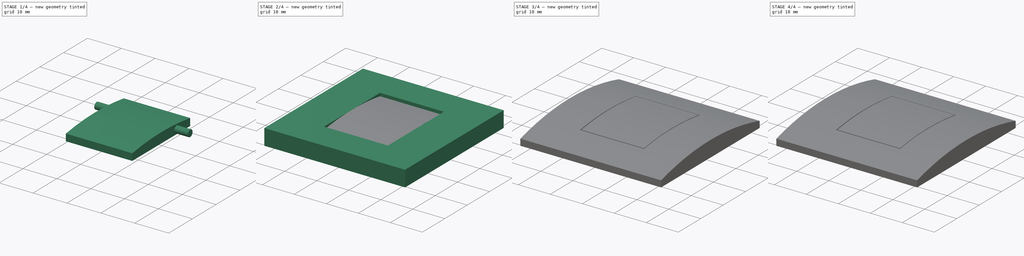
[diagram: build sequence overview — one tinted view per stage of 4, left to right]
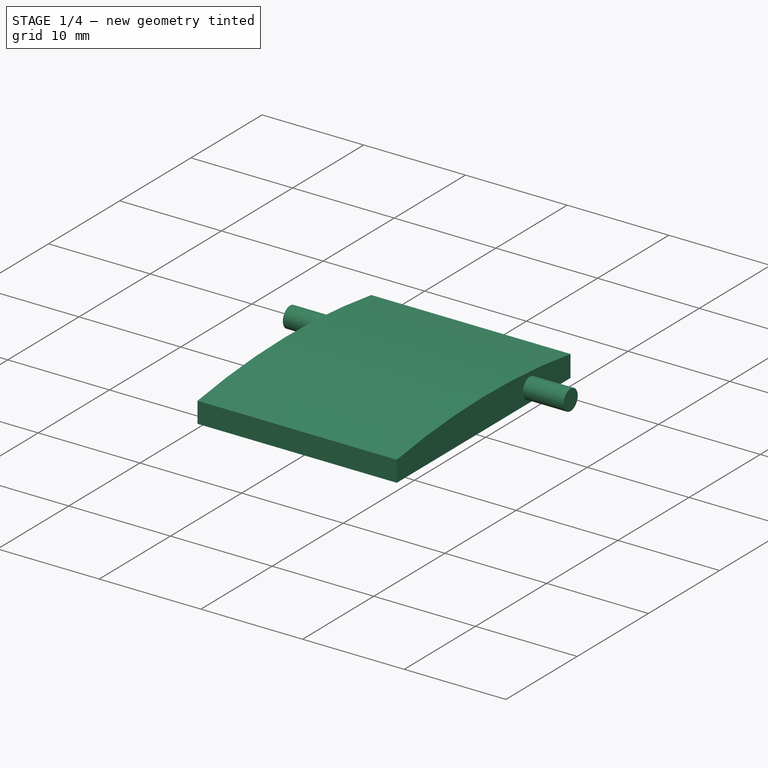
[diagram: stage 1 of 4 — iso view after this stage's code; geometry added in this stage tinted green]
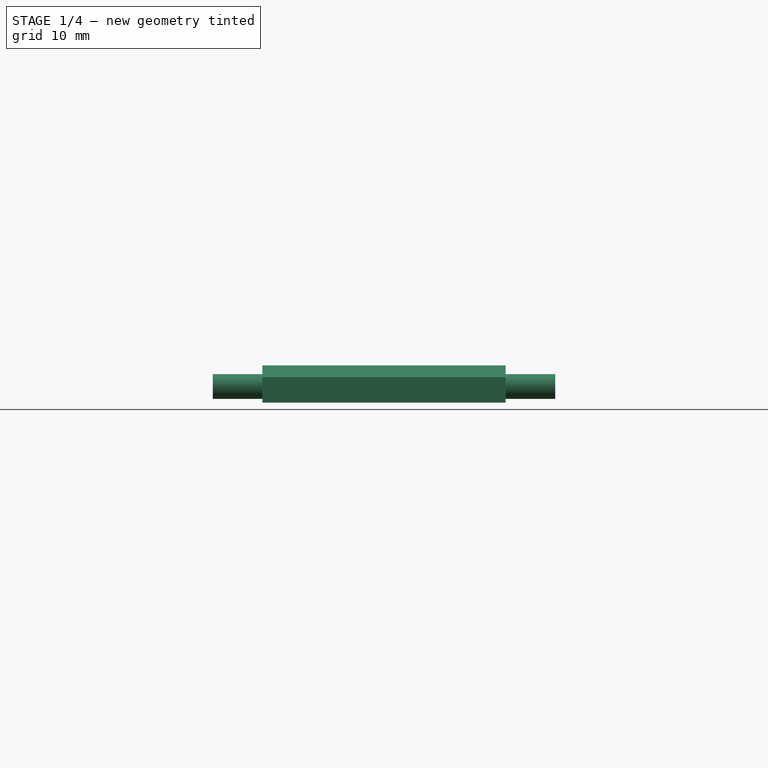
[diagram: stage 1 of 4 — front view after this stage's code; geometry added in this stage tinted green]
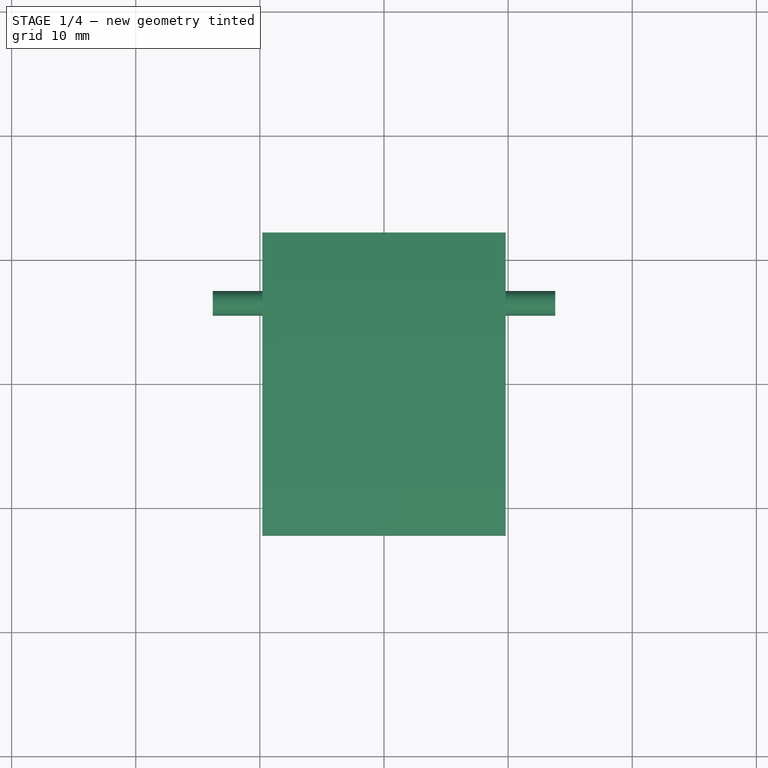
[diagram: stage 1 of 4 — top view after this stage's code; geometry added in this stage tinted green]
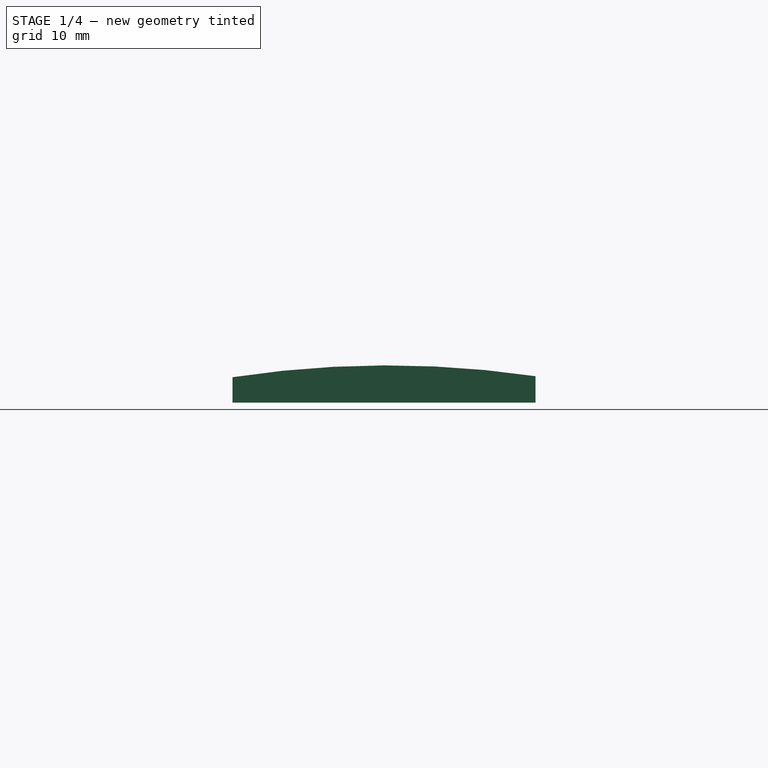
[diagram: stage 1 of 4 — right view after this stage's code; geometry added in this stage tinted green]
FCSTD DOCUMENT  (FreeCAD 0.16R)
Label: tirador armario
License: All rights reserved
LicenseURL: http://en.wikipedia.org/wiki/All_rights_reserved
objects: Sketcher::SketchObject×10, PartDesign::Pad×5, PartDesign::Pocket×5, Part::MultiCommon×1, Part::Feature×1
note: 32 computed .brp shape members not serialized (recipe doc carries the construction recipe); baked Part::Feature solids carry a one-line shape summary decoded from their .brp

FEATURE [Sketcher::SketchObject] Sketch006
  Placement = pos=(0,0,0) rot=(0.57735,0.57735,0.57735;2.0944rad)
  sketch-geometry (6):
    g0: LineSegment [constr] StartX=-12.5 StartY=5 StartZ=0 EndX=12.5 EndY=5 EndZ=0
    g1: LineSegment StartX=12.2 StartY=2 StartZ=0 EndX=-12.2 EndY=2 EndZ=0
    g2: LineSegment StartX=-12.2 StartY=2 StartZ=0 EndX=-12.2 EndY=4.04782 EndZ=0
    g3: ArcOfCircle CenterX=0.272708 CenterY=-77.1667 CenterZ=0 NormalX=0 NormalY=0 NormalZ=1 Radius=82.1667 StartAngle=1.42512 EndAngle=1.72318
    g4: LineSegment StartX=12.2 StartY=2 StartZ=0 EndX=12.2 EndY=4.12971 EndZ=0
    g5: GeomPoint [constr] X=0 Y=5 Z=0
  constraints (16):
    c: Coincident(g1,g2)
    c: Horizontal(g0)
    c: Horizontal(g1)
    c: Vertical(g2)
    c: DistanceX(g1,g1) = 24.4
    c: Symmetric(g1,g1,g-2)
    c: Tangent(g3,g0)
    c: Coincident(g4,g1)
    c: Coincident(g4,g3)
    c: Coincident(g2,g3)
    c: DistanceY(g-1,g0) = 5
    c: PointOnObject(g5,g0)
    c: PointOnObject(g5,g-2)
    c: DistanceY(g1,g5) = 3
    c: Radius(g3) = 82.1667
    c: Vertical(g4)
FEATURE [PartDesign::Pad] Pad002
  Length = 19.6
  Length2 = 100
  Midplane = true
  Placement = pos=(0,0,0) rot=(0.57735,0.57735,0.57735;2.0944rad)
  Sketch = -> Sketch006
  Type = 0
FEATURE [Sketcher::SketchObject] Sketch008
  ExternalGeometry = -> [Pad002]
  Placement = pos=(9.8,0,0) rot=(0.57735,0.57735,0.57735;2.0944rad)
  Support = -> Pad002 [Face6]
  sketch-geometry (1):
    g0: Circle CenterX=6.5 CenterY=3.3 CenterZ=0 NormalX=0 NormalY=0 NormalZ=1 Radius=1
  constraints (3):
    c: Radius(g0) = 1
    c: DistanceX(g0,g-3) = 5.7
    c: DistanceY(g-3,g0) = 1.3
FEATURE [PartDesign::Pad] Pad003
  Length = 4
  Length2 = 100
  Placement = pos=(0,0,0) rot=(0.57735,0.57735,0.57735;2.0944rad)
  Sketch = -> Sketch008
  Type = 0
FEATURE [Sketcher::SketchObject] Sketch009
  ExternalGeometry = -> [Pad003]
  Placement = pos=(-9.8,0,0) rot=(0.57735,0.57735,-0.57735;4.18879rad)
  Support = -> Pad003 [Face4]
  sketch-geometry (1):
    g0: Circle CenterX=6.5 CenterY=-3.3 CenterZ=0 NormalX=0 NormalY=0 NormalZ=1 Radius=1
  constraints (3):
    c: DistanceX(g0,g-3) = 5.7
    c: DistanceY(g0,g-3) = 1.3
    c: Radius(g0) = 1
FEATURE [PartDesign::Pad] Pad004  label="Tirador en Base"
  Length = 4
  Length2 = 100
  Placement = pos=(0,0,0) rot=(0.57735,0.57735,0.57735;2.0944rad)
  Sketch = -> Sketch009
  Type = 0
FEATURE [Part::Feature] Pad005  label="Tirador desplazado"
  Placement = pos=(0,-0.715741,2.26411) rot=(0.503333,0.702361,0.503333;1.91698rad)
  shape: bbox 27.6 x 23.79 x 9.781 mm, 10 faces (baked)
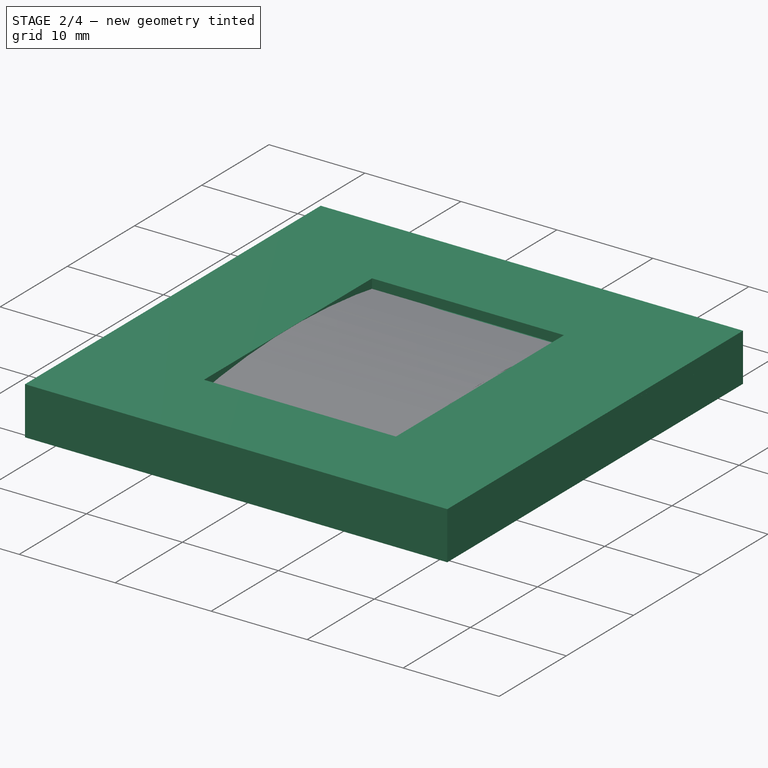
[diagram: stage 2 of 4 — iso view after this stage's code; geometry added in this stage tinted green]
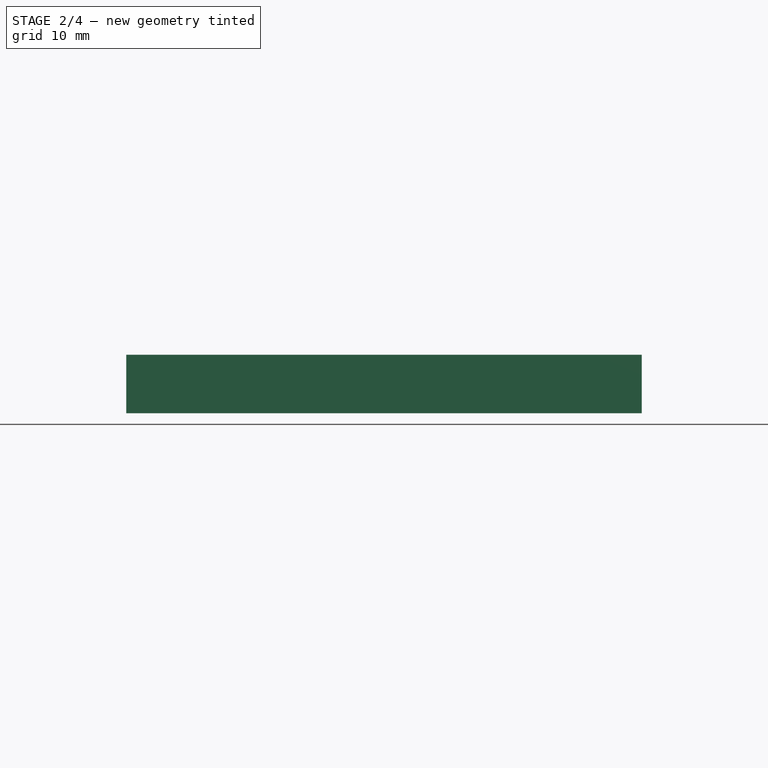
[diagram: stage 2 of 4 — front view after this stage's code; geometry added in this stage tinted green]
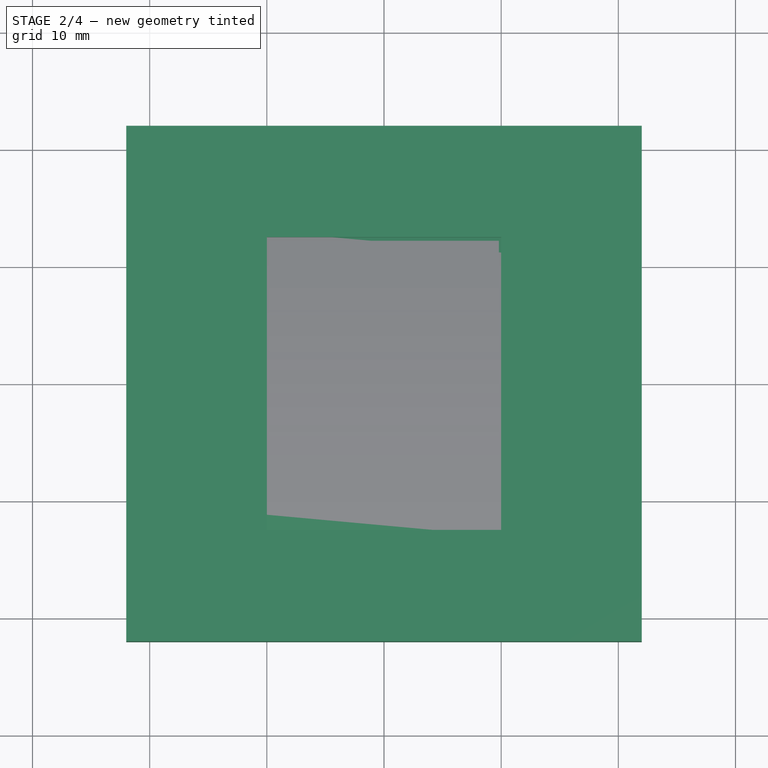
[diagram: stage 2 of 4 — top view after this stage's code; geometry added in this stage tinted green]
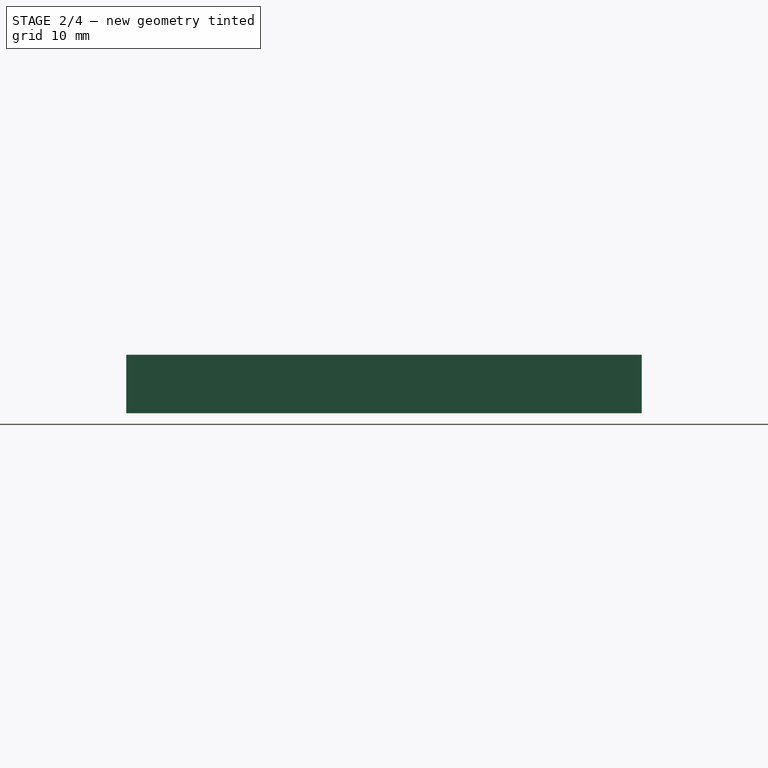
[diagram: stage 2 of 4 — right view after this stage's code; geometry added in this stage tinted green]
FEATURE [Sketcher::SketchObject] Sketch
  Placement = pos=(0,0,0) rot=(-1,0,0;4.71239rad)
  sketch-geometry (4):
    g0: LineSegment StartX=-22 StartY=0 StartZ=0 EndX=22 EndY=0 EndZ=0
    g1: LineSegment StartX=-22 StartY=0 StartZ=0 EndX=-22 EndY=5 EndZ=0
    g2: LineSegment StartX=22 StartY=0 StartZ=0 EndX=22 EndY=5 EndZ=0
    g3: LineSegment StartX=-22 StartY=5 StartZ=0 EndX=22 EndY=5 EndZ=0
  constraints (12):
    c: Horizontal(g0)
    c: PointOnObject(g-1,g0)
    c: DistanceX(g0,g0) = 44
    c: Coincident(g1,g0)
    c: Coincident(g2,g0)
    c: Vertical(g2)
    c: DistanceY(g2,g2) = 5
    c: Vertical(g1)
    c: DistanceY(g0,g1) = 5
    c: Coincident(g3,g1)
    c: Coincident(g3,g2)
    c: Symmetric(g1,g2,g-2)
FEATURE [PartDesign::Pad] Pad
  Length = 44
  Length2 = 100
  Midplane = true
  Placement = pos=(0,0,0) rot=(-1,0,0;4.71239rad)
  Sketch = -> Sketch
  Type = 0
FEATURE [Sketcher::SketchObject] Sketch001
  Placement = pos=(0,0,5) rot=(0,0,1;3.14159rad)
  Support = -> Pad [Face3]
  sketch-geometry (4):
    g0: LineSegment StartX=-10 StartY=12.5 StartZ=0 EndX=10 EndY=12.5 EndZ=0
    g1: LineSegment StartX=10 StartY=12.5 StartZ=0 EndX=10 EndY=-12.5 EndZ=0
    g2: LineSegment StartX=10 StartY=-12.5 StartZ=0 EndX=-10 EndY=-12.5 EndZ=0
    g3: LineSegment StartX=-10 StartY=-12.5 StartZ=0 EndX=-10 EndY=12.5 EndZ=0
  constraints (12):
    c: Coincident(g0,g1)
    c: Coincident(g1,g2)
    c: Coincident(g2,g3)
    c: Coincident(g3,g0)
    c: Horizontal(g0)
    c: Horizontal(g2)
    c: Vertical(g1)
    c: Vertical(g3)
    c: Symmetric(g1,g2,g-2)
    c: Symmetric(g0,g2,g-1)
    c: DistanceY(g1,g1) = 25
    c: DistanceX(g0,g0) = 20
FEATURE [PartDesign::Pocket] Pocket
  Length = 3
  Placement = pos=(0,0,0) rot=(-1,0,0;4.71239rad)
  Sketch = -> Sketch001
  Type = 0
FEATURE [Sketcher::SketchObject] Sketch002
  Placement = pos=(0,0,0) rot=(0.57735,0.57735,0.57735;2.0944rad)
  sketch-geometry (5):
    g0: LineSegment StartX=-22 StartY=0 StartZ=0 EndX=22 EndY=0 EndZ=0
    g1: LineSegment StartX=22 StartY=0 StartZ=0 EndX=22 EndY=2 EndZ=0
    g2: LineSegment StartX=-22 StartY=2 StartZ=0 EndX=-22 EndY=0 EndZ=0
    g3: ArcOfCircle CenterX=0 CenterY=-77.1667 CenterZ=0 NormalX=0 NormalY=0 NormalZ=1 Radius=82.1667 StartAngle=1.29974 EndAngle=1.84185
    g4: LineSegment [constr] StartX=-7.59558 StartY=5 StartZ=0 EndX=12.9097 EndY=5 EndZ=0
  constraints (15):
    c: Coincident(g0,g1)
    c: Coincident(g2,g0)
    c: Horizontal(g0)
    c: Vertical(g1)
    c: Vertical(g2)
    c: PointOnObject(g0,g-1)
    c: DistanceX(g0,g0) = 44
    c: Symmetric(g0,g0,g-2)
    c: DistanceY(g0,g1) = 2
    c: DistanceY(g0,g2) = 2
    c: Coincident(g3,g1)
    c: Coincident(g3,g2)
    c: Horizontal(g4)
    c: Tangent(g4,g3)
    c: DistanceY(g-1,g4) = 5
FEATURE [PartDesign::Pad] Pad001
  Length = 44
  Length2 = 100
  Midplane = true
  Placement = pos=(0,0,0) rot=(0.57735,0.57735,0.57735;2.0944rad)
  Sketch = -> Sketch002
  Type = 0
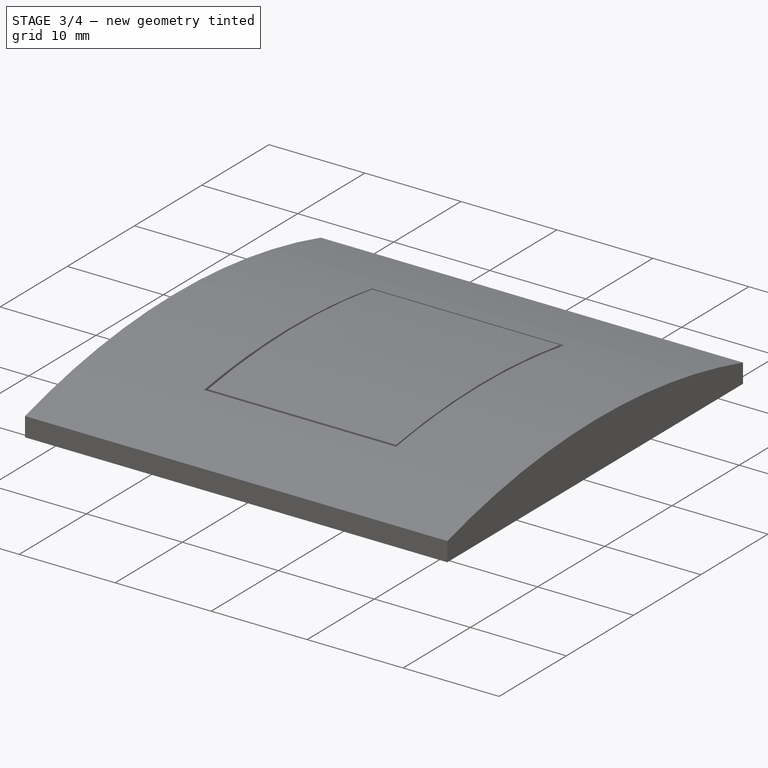
[diagram: stage 3 of 4 — iso view after this stage's code; geometry added in this stage tinted green]
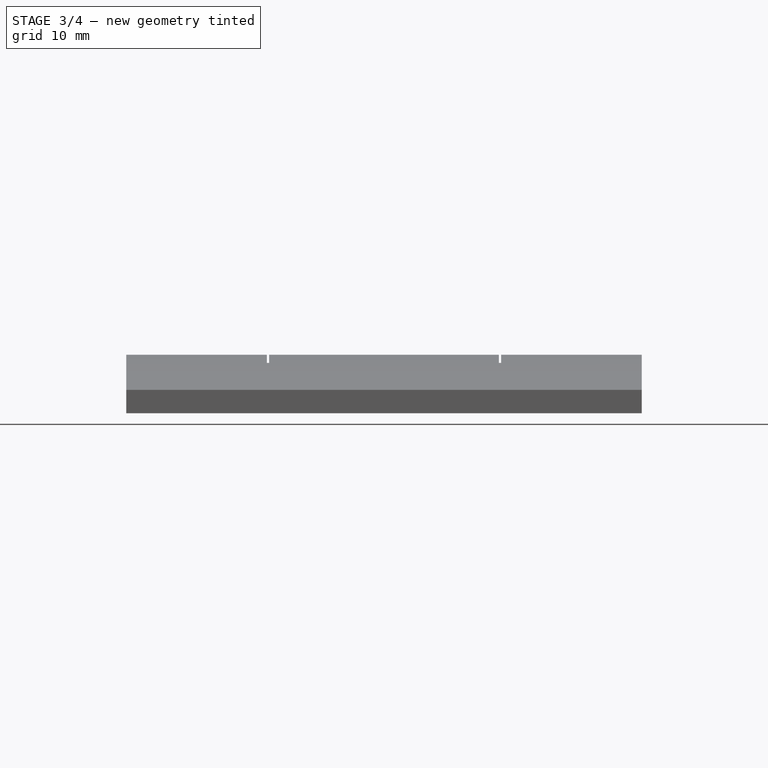
[diagram: stage 3 of 4 — front view after this stage's code; geometry added in this stage tinted green]
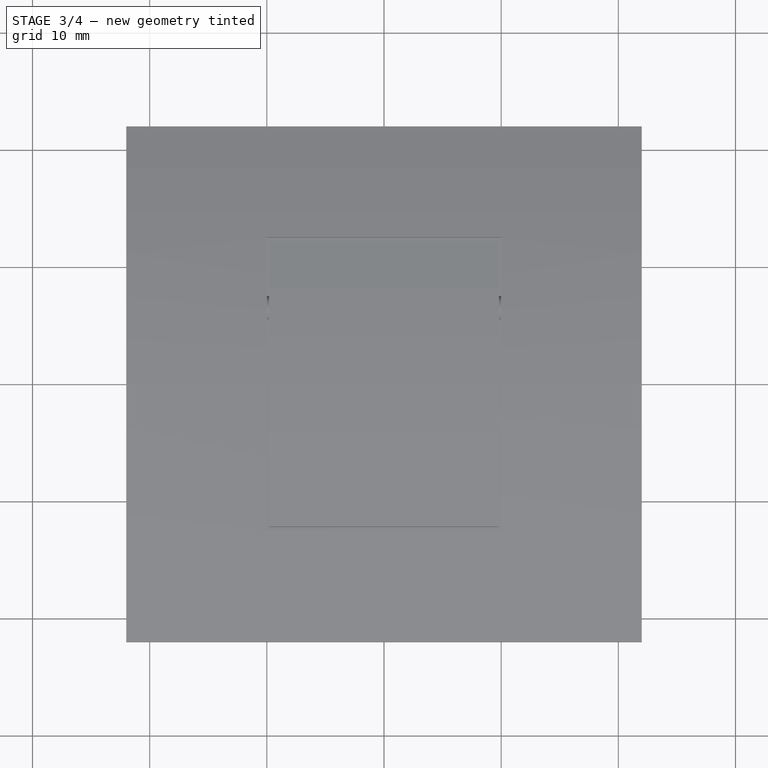
[diagram: stage 3 of 4 — top view after this stage's code; geometry added in this stage tinted green]
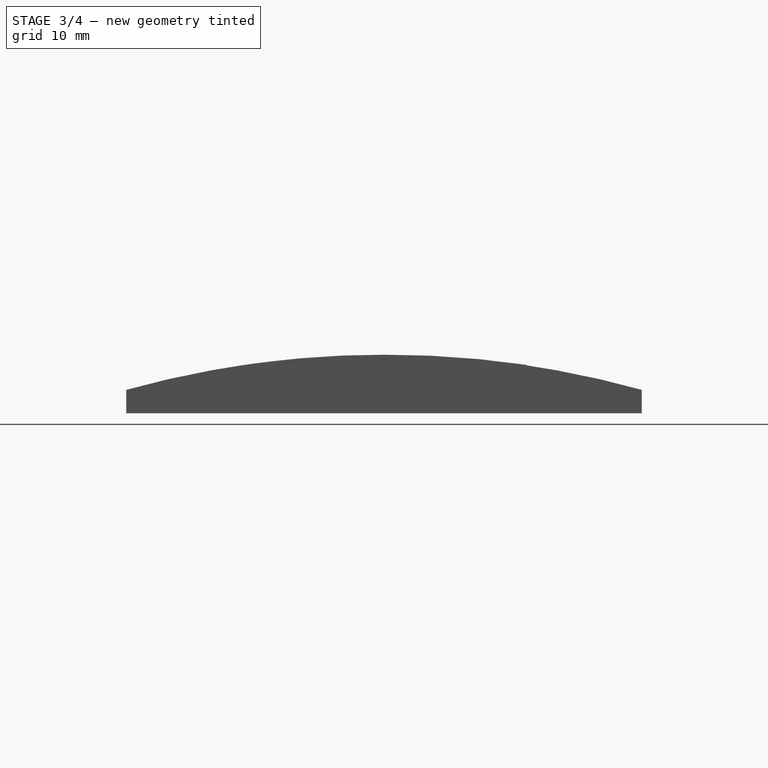
[diagram: stage 3 of 4 — right view after this stage's code; geometry added in this stage tinted green]
FEATURE [Part::MultiCommon] Common
  Shapes = -> [Pocket,Pad001]
FEATURE [Sketcher::SketchObject] Sketch003
  ExternalGeometry = -> [Common]
  Placement = pos=(-10,0,0) rot=(0.57735,0.57735,0.57735;2.0944rad)
  Support = -> Common [Face9]
  sketch-geometry (1):
    g0: Circle CenterX=6.5 CenterY=3.3 CenterZ=0 NormalX=0 NormalY=0 NormalZ=1 Radius=1.1
  constraints (3):
    c: Radius(g0) = 1.1
    c: DistanceX(g0,g-3) = 6
    c: DistanceY(g-3,g0) = 1.3
FEATURE [PartDesign::Pocket] Pocket001
  Length = 5
  Sketch = -> Sketch003
  Type = 0
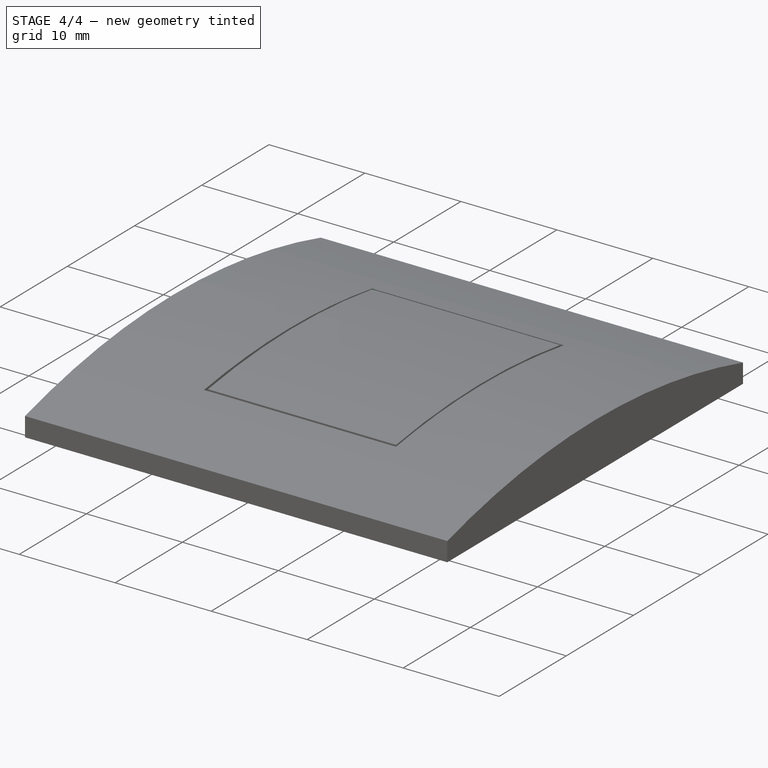
[diagram: stage 4 of 4 — iso view after this stage's code; geometry added in this stage tinted green]
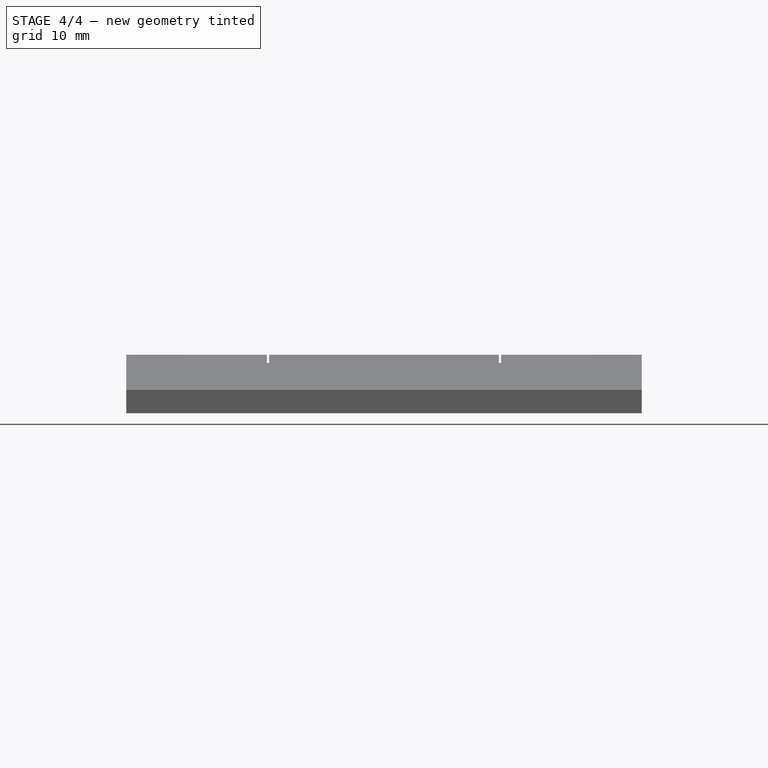
[diagram: stage 4 of 4 — front view after this stage's code; geometry added in this stage tinted green]
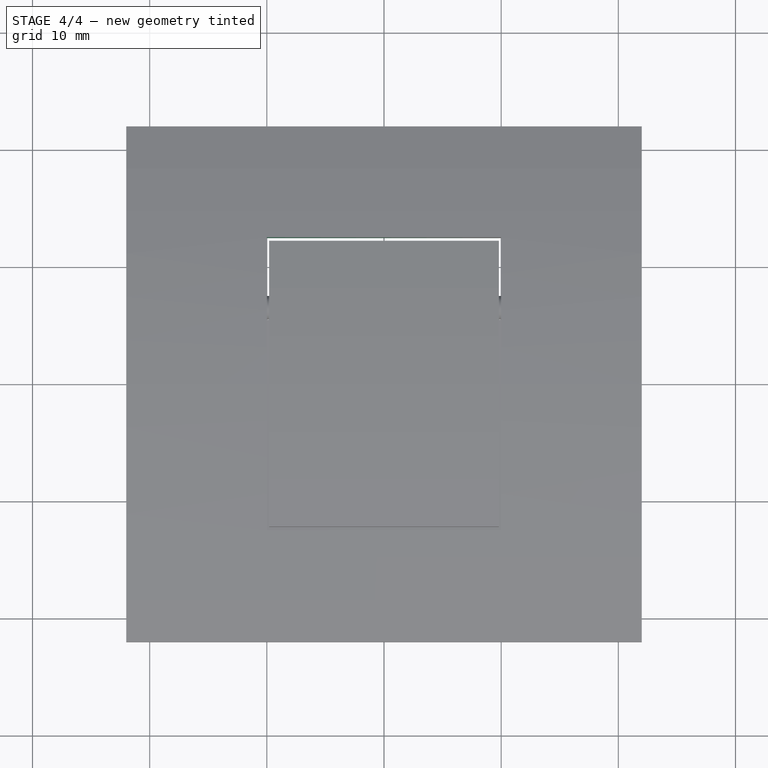
[diagram: stage 4 of 4 — top view after this stage's code; geometry added in this stage tinted green]
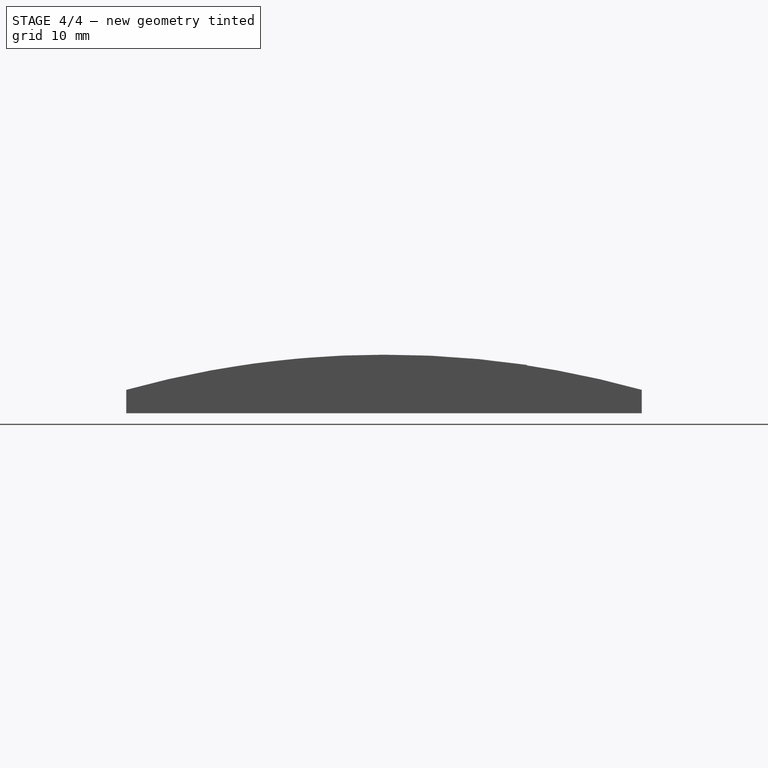
[diagram: stage 4 of 4 — right view after this stage's code; geometry added in this stage tinted green]
FEATURE [Sketcher::SketchObject] Sketch004
  ExternalGeometry = -> [Pocket001]
  Placement = pos=(10,0,0) rot=(0.57735,-0.57735,-0.57735;2.0944rad)
  Support = -> Pocket001 [Face10]
  sketch-geometry (1):
    g0: Circle CenterX=-6.5 CenterY=3.3 CenterZ=0 NormalX=0 NormalY=0 NormalZ=1 Radius=1.1
  constraints (3):
    c: Radius(g0) = 1.1
    c: DistanceX(g-3,g0) = 6
    c: DistanceY(g-3,g0) = 1.3
FEATURE [PartDesign::Pocket] Pocket002
  Length = 5
  Sketch = -> Sketch004
  Type = 0
FEATURE [Sketcher::SketchObject] Sketch005
  ExternalGeometry = -> [Pocket002]
  Placement = pos=(0,0,2) rot=(0,0,1;0rad)
  Support = -> Pocket002 [Face11]
  sketch-geometry (4):
    g0: LineSegment StartX=-10 StartY=12.5 StartZ=0 EndX=10 EndY=12.5 EndZ=0
    g1: LineSegment StartX=10 StartY=12.5 StartZ=0 EndX=10 EndY=5.5 EndZ=0
    g2: LineSegment StartX=10 StartY=5.5 StartZ=0 EndX=-10 EndY=5.5 EndZ=0
    g3: LineSegment StartX=-10 StartY=5.5 StartZ=0 EndX=-10 EndY=12.5 EndZ=0
  constraints (11):
    c: Coincident(g0,g1)
    c: Coincident(g1,g2)
    c: Coincident(g2,g3)
    c: Coincident(g3,g0)
    c: Horizontal(g0)
    c: Horizontal(g2)
    c: Vertical(g1)
    c: Vertical(g3)
    c: Coincident(g0,g-3)
    c: Coincident(g0,g-3)
    c: DistanceY(g2,g0) = 7
FEATURE [PartDesign::Pocket] Pocket003
  Length = 5
  Sketch = -> Sketch005
  Type = 1
FEATURE [Sketcher::SketchObject] Sketch007
  ExternalGeometry = -> [Pocket003]
  Placement = pos=(0,0,0) rot=(1,0,0;3.14159rad)
  Support = -> Pocket003 [Face1]
  sketch-geometry (2):
    g0: Circle CenterX=-16 CenterY=0 CenterZ=0 NormalX=0 NormalY=0 NormalZ=1 Radius=2
    g1: Circle CenterX=16 CenterY=0 CenterZ=0 NormalX=0 NormalY=0 NormalZ=1 Radius=2
  constraints (6):
    c: Radius(g1) = 2
    c: Equal(g1,g0)
    c: DistanceX(g-3,g0) = 6
    c: DistanceX(g1,g-4) = 6
    c: PointOnObject(g1,g-1)
    c: PointOnObject(g0,g-1)
FEATURE [PartDesign::Pocket] Pocket004  label="Base Tirador"
  Length = 3.5
  Sketch = -> Sketch007
  Type = 0
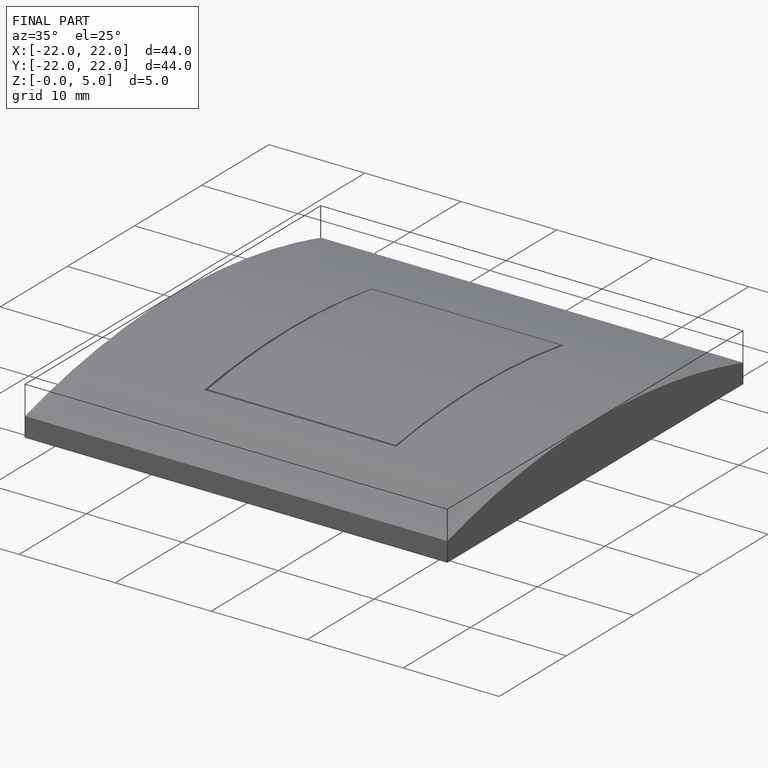
[diagram: finished part — iso view with bounding-box wireframe]
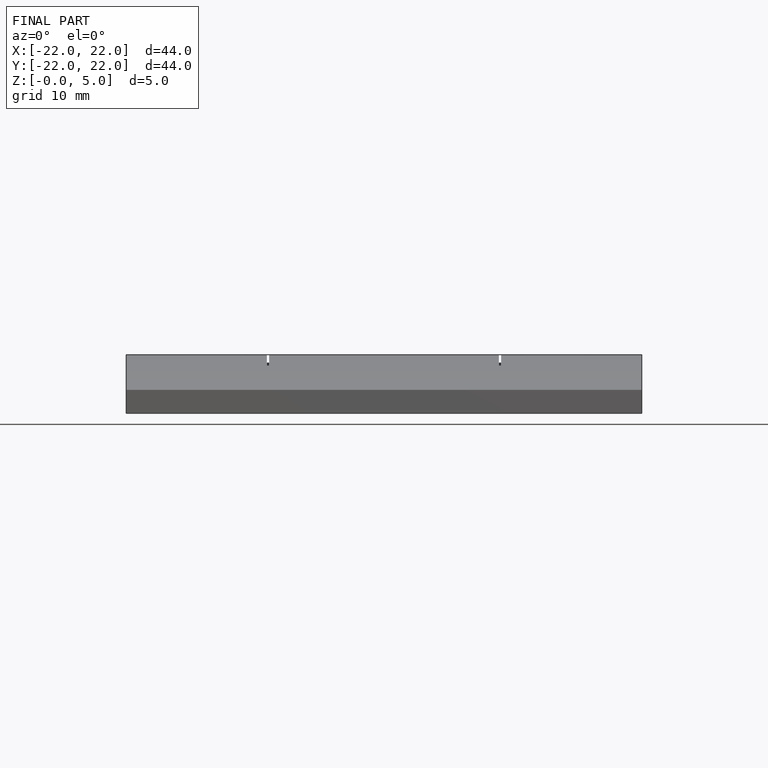
[diagram: finished part — front view with bounding-box wireframe]
